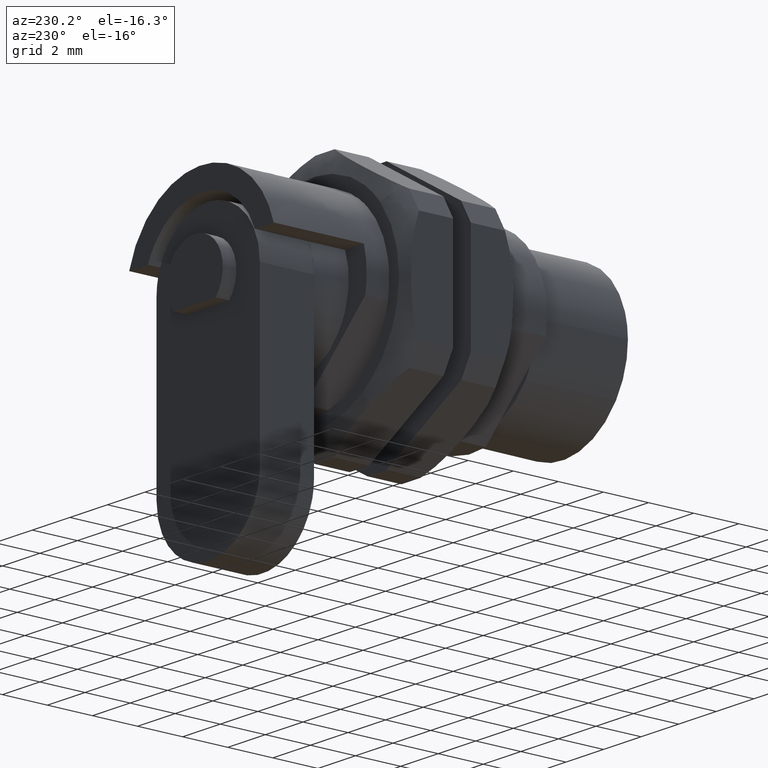
[diagram: clean part render]
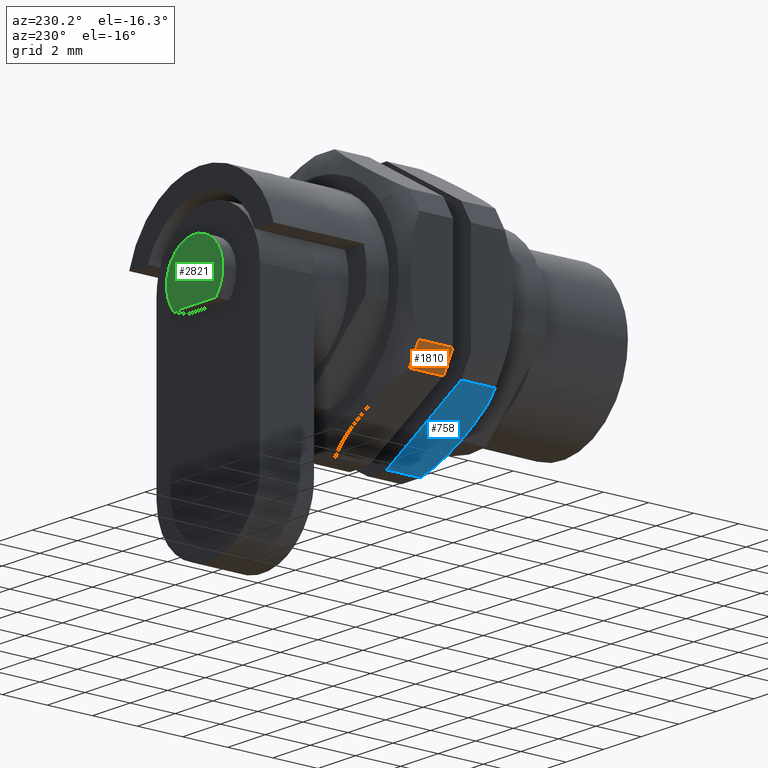
[diagram: same view with three faces highlighted in distinct colors, each labeled with its STEP entity id]
A machine part, auxiliary view with three faces highlighted in distinct colors.
Their STEP definitions:

[orange] entity #1810 — the highlighted face is a freeform B-spline surface patch.
#1651=CARTESIAN_POINT('',(90.623090530386193,4.485112333413095,85.155953125574598));
#1652=VERTEX_POINT('',#1651);
#1670=CARTESIAN_POINT('',(90.623090530395700,5.0,86.048023152522092));
#1671=VERTEX_POINT('',#1670);
#1672=CARTESIAN_POINT('',(90.623090530395700,5.0,86.048023152522092));
#1673=CARTESIAN_POINT('',(90.623090530386193,4.784505534568772,85.577775676482730));
#1674=CARTESIAN_POINT('',(90.623090530386193,4.485112333413059,85.155953125574626));
#1682=(BOUNDED_CURVE()B_SPLINE_CURVE(2,(#1672,#1673,#1674),.UNSPECIFIED.,.F.,.U.)CURVE()GEOMETRIC_REPRESENTATION_ITEM()QUASI_UNIFORM_CURVE()RATIONAL_B_SPLINE_CURVE((1.0,0.995606471419499,1.0))REPRESENTATION_ITEM(''));
#1683=EDGE_CURVE('',#1671,#1652,#1682,.T.);
#1757=CARTESIAN_POINT('',(89.108363999999995,5.0,86.048023152522092));
#1758=VERTEX_POINT('',#1757);
#1759=CARTESIAN_POINT('',(90.623090530395700,5.0,86.048023152522092));
#1760=CARTESIAN_POINT('',(89.108363999999995,5.0,86.048023152522092));
#1761=QUASI_UNIFORM_CURVE('',1,(#1759,#1760),.UNSPECIFIED.,.F.,.U.);
#1762=EDGE_CURVE('',#1671,#1758,#1761,.T.);
#1772=CARTESIAN_POINT('',(90.660958693655587,4.455161378007467,85.114169592881467));
#1773=CARTESIAN_POINT('',(89.069549132658594,4.455161378007467,85.114169592881467));
#1774=CARTESIAN_POINT('',(90.660958693655587,4.788939854143194,85.575246112629671));
#1775=CARTESIAN_POINT('',(89.069549132658594,4.788939854143194,85.575246112629671));
#1776=CARTESIAN_POINT('',(90.660958693655587,5.021219360496906,86.094905480988118));
#1777=CARTESIAN_POINT('',(89.069549132658608,5.021219360496906,86.094905480988118));
#1785=(BOUNDED_SURFACE()B_SPLINE_SURFACE(1,2,((#1772,#1774,#1776),(#1773,#1775,#1777)),.UNSPECIFIED.,.F.,.F.,.U.)B_SPLINE_SURFACE_WITH_KNOTS((2,2),(3,3),(0.0,1.0),(0.064446310824901,0.851863627009839),.UNSPECIFIED.)GEOMETRIC_REPRESENTATION_ITEM()RATIONAL_B_SPLINE_SURFACE(((0.998968370330022,0.993100186577240,0.997840820098505),(0.998968370330022,0.993100186577240,0.997840820098505)))REPRESENTATION_ITEM('')SURFACE());
#1786=ORIENTED_EDGE('',*,*,#1762,.F.);
#1787=ORIENTED_EDGE('',*,*,#1683,.T.);
#1788=CARTESIAN_POINT('',(89.108363999999995,4.485112333413090,85.155953125574598));
#1789=VERTEX_POINT('',#1788);
#1790=CARTESIAN_POINT('',(90.623090530386193,4.485112333413095,85.155953125574598));
#1791=CARTESIAN_POINT('',(89.108363999999995,4.485112333413090,85.155953125574598));
#1792=QUASI_UNIFORM_CURVE('',1,(#1790,#1791),.UNSPECIFIED.,.F.,.U.);
#1793=EDGE_CURVE('',#1652,#1789,#1792,.T.);
#1794=ORIENTED_EDGE('',*,*,#1793,.T.);
#1795=CARTESIAN_POINT('',(89.108363999999995,4.485112333413054,85.155953125574612));
#1796=CARTESIAN_POINT('',(89.108363999999995,4.784505534568773,85.577775676482730));
#1797=CARTESIAN_POINT('',(89.108363999999995,5.000000000000003,86.048023152522092));
#1805=(BOUNDED_CURVE()B_SPLINE_CURVE(2,(#1795,#1796,#1797),.UNSPECIFIED.,.F.,.U.)CURVE()GEOMETRIC_REPRESENTATION_ITEM()QUASI_UNIFORM_CURVE()RATIONAL_B_SPLINE_CURVE((1.0,0.995606471419499,1.0))REPRESENTATION_ITEM(''));
#1806=EDGE_CURVE('',#1789,#1758,#1805,.T.);
#1807=ORIENTED_EDGE('',*,*,#1806,.T.);
#1808=EDGE_LOOP('',(#1786,#1787,#1794,#1807));
#1809=FACE_OUTER_BOUND('',#1808,.T.);
#1810=ADVANCED_FACE('',(#1809),#1785,.T.);

[blue] entity #758 — the highlighted face is a freeform B-spline surface patch.
#447=CARTESIAN_POINT('',(167.202001469614000,4.485112333413095,-3.183357874425335));
#448=VERTEX_POINT('',#447);
#462=CARTESIAN_POINT('',(167.202001469614000,0.513718745646972,-5.475955902887730));
#463=VERTEX_POINT('',#462);
#464=CARTESIAN_POINT('',(167.202001469613800,4.485112333413147,-3.183357874425300));
#465=CARTESIAN_POINT('',(167.162626277093610,4.406936004739541,-3.228487346744953));
#466=CARTESIAN_POINT('',(167.128564030117790,4.327622566370564,-3.274273247441230));
#467=CARTESIAN_POINT('',(167.068469748074510,4.167277013666353,-3.366837202606691));
#468=CARTESIAN_POINT('',(167.042456861726010,4.086240801003054,-3.413617622950381));
#469=CARTESIAN_POINT('',(166.973927331434510,3.841096960052591,-3.555133761815091));
#470=CARTESIAN_POINT('',(166.940792135626510,3.674981455806235,-3.651028582893868));
#471=CARTESIAN_POINT('',(166.903387564663210,3.423176057208451,-3.796390292234341));
#472=CARTESIAN_POINT('',(166.893038942089390,3.338964859039203,-3.845003561765720));
#473=CARTESIAN_POINT('',(166.875889106693510,3.170936785107563,-3.942002467189925));
#474=CARTESIAN_POINT('',(166.869067766751900,3.086977801555010,-3.990470138779371));
#475=CARTESIAN_POINT('',(166.853018787017500,2.835239460677163,-4.135793137175402));
#476=CARTESIAN_POINT('',(166.848101639080000,2.667595430849399,-4.232570342398925));
#477=CARTESIAN_POINT('',(166.848073931307790,2.332615248130377,-4.425947022273052));
#478=CARTESIAN_POINT('',(166.852966705766110,2.165279199918947,-4.522546436494296));
#479=CARTESIAN_POINT('',(166.874169841771790,1.830965557598421,-4.715538337280247));
#480=CARTESIAN_POINT('',(166.890458458848090,1.663987280823645,-4.811931217932811));
#481=CARTESIAN_POINT('',(166.927322642041990,1.413910143856136,-4.956295239907707));
#482=CARTESIAN_POINT('',(166.941711162492600,1.330617041930602,-5.004378512703243));
#483=CARTESIAN_POINT('',(166.975786241508100,1.164197169501535,-5.100449038828669));
#484=CARTESIAN_POINT('',(166.995509891672610,1.080915333137517,-5.148525808263721));
#485=CARTESIAN_POINT('',(167.064658411824690,0.832424065896098,-5.291974342582438));
#486=CARTESIAN_POINT('',(167.123170138000210,0.670232116007266,-5.385604182166474));
#487=CARTESIAN_POINT('',(167.202001469614000,0.513718745646972,-5.475955902887730));
#488=B_SPLINE_CURVE_WITH_KNOTS('',3,(#464,#465,#466,#467,#468,#469,#470,#471,#472,#473,#474,#475,#476,#477,#478,#479,#480,#481,#482,#483,#484,#485,#486,#487),.UNSPECIFIED.,.F.,.U.,(4,2,2,2,2,2,2,2,2,2,2,4),(0.0,0.062500000000002,0.125000000000005,0.250000000000006,0.312500000000006,0.375000000000006,0.500000000000007,0.625000000000007,0.750000000000008,0.812500000000007,0.875000000000006,1.0),.UNSPECIFIED.);
#489=EDGE_CURVE('',#448,#463,#488,.T.);
#713=CARTESIAN_POINT('',(168.716727999999990,4.485112333413090,-3.183357874425335));
#714=VERTEX_POINT('',#713);
#728=CARTESIAN_POINT('',(167.202001469614000,4.485112333413095,-3.183357874425335));
#729=CARTESIAN_POINT('',(168.716727999999990,4.485112333413090,-3.183357874425335));
#730=QUASI_UNIFORM_CURVE('',1,(#728,#729),.UNSPECIFIED.,.F.,.U.);
#731=EDGE_CURVE('',#448,#714,#730,.T.);
#737=CARTESIAN_POINT('',(166.754745080095290,4.683483286302272,-3.068842693432214));
#738=CARTESIAN_POINT('',(166.754745080095290,0.315347544208610,-5.590471227362808));
#739=CARTESIAN_POINT('',(168.810058980920500,4.683483286302272,-3.068842693432214));
#740=CARTESIAN_POINT('',(168.810058980920500,0.315347544208610,-5.590471227362808));
#741=B_SPLINE_SURFACE_WITH_KNOTS('',1,1,((#737,#739),(#738,#740)),.UNSPECIFIED.,.F.,.F.,.U.,(2,2),(2,2),(0.0,5.043730794212664),(0.0,2.055313900825212),.UNSPECIFIED.);
#742=ORIENTED_EDGE('',*,*,#731,.T.);
#743=CARTESIAN_POINT('',(168.716727999999990,0.513718745646999,-5.475955902887710));
#744=VERTEX_POINT('',#743);
#745=CARTESIAN_POINT('',(168.716727999999990,0.513718745646999,-5.475955902887710));
#746=CARTESIAN_POINT('',(168.716727999999990,4.485112333413090,-3.183357874425335));
#747=QUASI_UNIFORM_CURVE('',1,(#745,#746),.UNSPECIFIED.,.F.,.U.);
#748=EDGE_CURVE('',#744,#714,#747,.T.);
#749=ORIENTED_EDGE('',*,*,#748,.F.);
#750=CARTESIAN_POINT('',(167.202001469614000,0.513718745646972,-5.475955902887730));
#751=CARTESIAN_POINT('',(168.716727999999990,0.513718745646999,-5.475955902887710));
#752=QUASI_UNIFORM_CURVE('',1,(#750,#751),.UNSPECIFIED.,.F.,.U.);
#753=EDGE_CURVE('',#463,#744,#752,.T.);
#754=ORIENTED_EDGE('',*,*,#753,.F.);
#755=ORIENTED_EDGE('',*,*,#489,.F.);
#756=EDGE_LOOP('',(#742,#749,#754,#755));
#757=FACE_OUTER_BOUND('',#756,.T.);
#758=ADVANCED_FACE('',(#757),#741,.F.);

[green] entity #2821 — the highlighted face is a freeform B-spline surface patch.
#2686=CARTESIAN_POINT('',(16.800000000000001,1.118033988749894,-1.0));
#2687=VERTEX_POINT('',#2686);
#2688=CARTESIAN_POINT('',(16.800000000000001,-1.118033988749894,-1.0));
#2689=VERTEX_POINT('',#2688);
#2690=CARTESIAN_POINT('',(16.800000000000001,1.118033988749894,-1.0));
#2691=CARTESIAN_POINT('',(16.800000000000001,-1.118033988749894,-1.0));
#2692=QUASI_UNIFORM_CURVE('',1,(#2690,#2691),.UNSPECIFIED.,.F.,.U.);
#2693=EDGE_CURVE('',#2687,#2689,#2692,.T.);
#2789=CARTESIAN_POINT('',(16.800000000000001,-1.118033988749891,-0.999999999999997));
#2790=CARTESIAN_POINT('',(16.800000000000008,-2.081592375276987,0.077291026282311));
#2791=CARTESIAN_POINT('',(16.800000000000001,-1.040796187638487,1.080158921546814));
#2792=CARTESIAN_POINT('',(16.800000000000008,1.296012E-014,2.083026816811319));
#2793=CARTESIAN_POINT('',(16.800000000000001,1.040796187638508,1.080158921546808));
#2794=CARTESIAN_POINT('',(16.800000000000008,2.081592375277003,0.077291026282299));
#2795=CARTESIAN_POINT('',(16.800000000000001,1.118033988749899,-1.000000000000004));
#2803=(BOUNDED_CURVE()B_SPLINE_CURVE(2,(#2789,#2790,#2791,#2792,#2793,#2794,#2795),.UNSPECIFIED.,.F.,.U.)B_SPLINE_CURVE_WITH_KNOTS((3,2,2,3),(0.0,0.333333333333333,0.666666666666667,1.0),.UNSPECIFIED.)CURVE()GEOMETRIC_REPRESENTATION_ITEM()RATIONAL_B_SPLINE_CURVE((1.0,0.720105947697874,1.0,0.720105947697874,1.0,0.720105947697874,1.0))REPRESENTATION_ITEM(''));
#2804=EDGE_CURVE('',#2689,#2687,#2803,.T.);
#2812=CARTESIAN_POINT('',(16.800000000000001,-1.648713726126380,-1.124874995154515));
#2813=CARTESIAN_POINT('',(16.800000000000001,-1.648713726126380,1.624875062209738));
#2814=CARTESIAN_POINT('',(16.800000000000001,1.648713755199652,-1.124874995154515));
#2815=CARTESIAN_POINT('',(16.800000000000001,1.648713755199652,1.624875062209738));
#2816=B_SPLINE_SURFACE_WITH_KNOTS('',1,1,((#2812,#2814),(#2813,#2815)),.UNSPECIFIED.,.F.,.F.,.U.,(2,2),(2,2),(0.0,2.749750057364253),(0.0,3.297427481326032),.UNSPECIFIED.);
#2817=ORIENTED_EDGE('',*,*,#2804,.F.);
#2818=ORIENTED_EDGE('',*,*,#2693,.F.);
#2819=EDGE_LOOP('',(#2817,#2818));
#2820=FACE_OUTER_BOUND('',#2819,.T.);
#2821=ADVANCED_FACE('',(#2820),#2816,.F.);